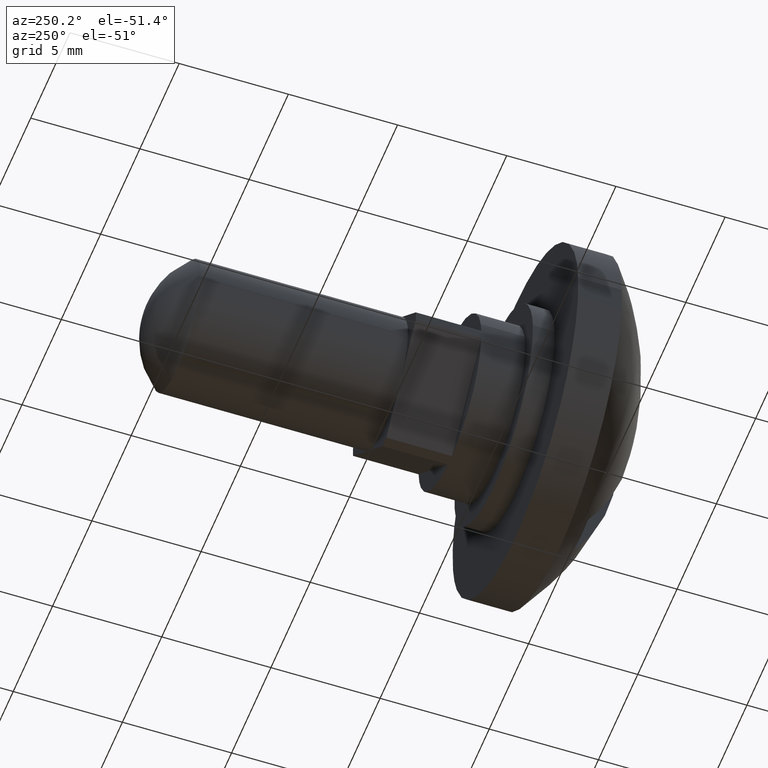
[diagram: clean part render]
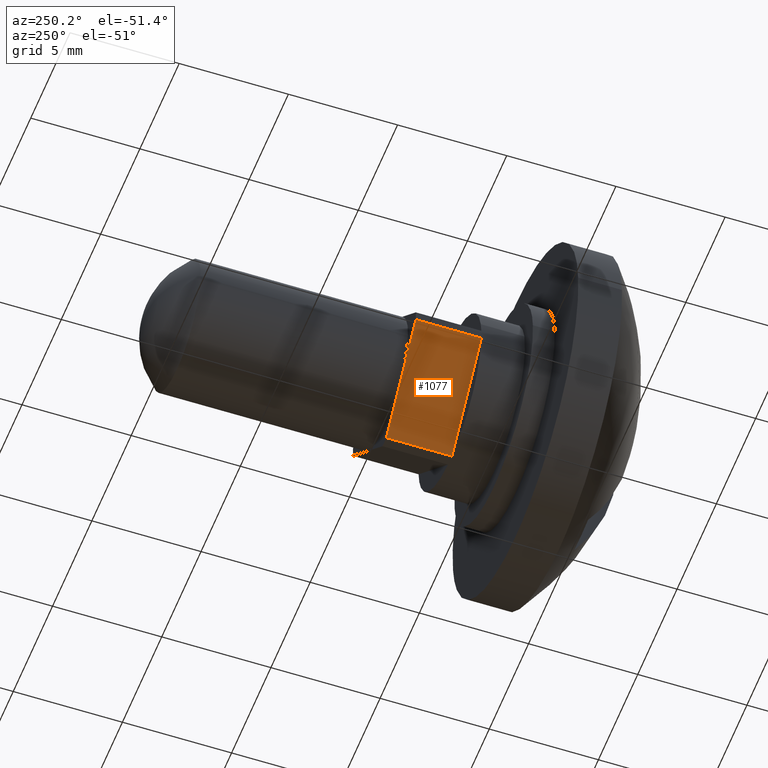
[diagram: same view with one face highlighted and labeled with its STEP entity id]
A machine part, auxiliary view. The second image highlights one B-rep face of the part: STEP entity #1077.
In plain terms, the highlighted face is a freeform B-spline surface patch.
Its self-contained STEP definition (entity closure, byte-faithful):
#120=CARTESIAN_POINT('',(-2.121323301251275,3.400000000000000,-2.121318198730010));
#121=VERTEX_POINT('',#120);
#704=CARTESIAN_POINT('',(-3.992149283786215,3.399999999999960,-0.250487716196264));
#705=VERTEX_POINT('',#704);
#719=CARTESIAN_POINT('',(-3.992149283786215,0.400000000000067,-0.250487716196264));
#720=VERTEX_POINT('',#719);
#721=CARTESIAN_POINT('',(-3.992149283786215,3.399999999999960,-0.250487716196264));
#722=CARTESIAN_POINT('',(-3.992149283786215,0.400000000000067,-0.250487716196264));
#723=QUASI_UNIFORM_CURVE('',1,(#721,#722),.UNSPECIFIED.,.F.,.U.);
#724=EDGE_CURVE('',#705,#720,#723,.T.);
#726=CARTESIAN_POINT('',(-0.250497318716338,0.400000000000067,-3.992148681263755));
#727=VERTEX_POINT('',#726);
#741=CARTESIAN_POINT('',(-0.250497318716338,3.399999999999960,-3.992148681263755));
#742=VERTEX_POINT('',#741);
#743=CARTESIAN_POINT('',(-0.250497318716338,3.399999999999960,-3.992148681263755));
#744=CARTESIAN_POINT('',(-0.250497318716338,0.400000000000067,-3.992148681263755));
#745=QUASI_UNIFORM_CURVE('',1,(#743,#744),.UNSPECIFIED.,.F.,.U.);
#746=EDGE_CURVE('',#742,#727,#745,.T.);
#1003=CARTESIAN_POINT('',(-2.121323301251275,3.400000000000000,-2.121318198730010));
#1004=CARTESIAN_POINT('',(-0.250497318716338,3.399999999999960,-3.992148681263755));
#1005=QUASI_UNIFORM_CURVE('',1,(#1003,#1004),.UNSPECIFIED.,.F.,.U.);
#1006=EDGE_CURVE('',#121,#742,#1005,.T.);
#1057=CARTESIAN_POINT('',(-0.063601810313145,0.250150005814653,-4.179044639216812));
#1058=CARTESIAN_POINT('',(-4.179044892548337,0.250150005814653,-0.063591657884042));
#1059=CARTESIAN_POINT('',(-0.063601810313145,3.549850074651685,-4.179044639216812));
#1060=CARTESIAN_POINT('',(-4.179044892548337,3.549850074651685,-0.063591657884042));
#1061=B_SPLINE_SURFACE_WITH_KNOTS('',1,1,((#1057,#1059),(#1058,#1060)),.UNSPECIFIED.,.F.,.F.,.U.,(2,2),(2,2),(0.0,5.820122421794775),(0.0,3.299700068837032),.UNSPECIFIED.);
#1062=CARTESIAN_POINT('',(-3.992149283786215,3.399999999999960,-0.250487716196264));
#1063=CARTESIAN_POINT('',(-2.121323301251275,3.400000000000000,-2.121318198730010));
#1064=QUASI_UNIFORM_CURVE('',1,(#1062,#1063),.UNSPECIFIED.,.F.,.U.);
#1065=EDGE_CURVE('',#705,#121,#1064,.T.);
#1066=ORIENTED_EDGE('',*,*,#1065,.T.);
#1067=ORIENTED_EDGE('',*,*,#1006,.T.);
#1068=ORIENTED_EDGE('',*,*,#746,.T.);
#1069=CARTESIAN_POINT('',(-3.992149283786215,0.400000000000067,-0.250487716196264));
#1070=CARTESIAN_POINT('',(-0.250497318716338,0.400000000000067,-3.992148681263755));
#1071=QUASI_UNIFORM_CURVE('',1,(#1069,#1070),.UNSPECIFIED.,.F.,.U.);
#1072=EDGE_CURVE('',#720,#727,#1071,.T.);
#1073=ORIENTED_EDGE('',*,*,#1072,.F.);
#1074=ORIENTED_EDGE('',*,*,#724,.F.);
#1075=EDGE_LOOP('',(#1066,#1067,#1068,#1073,#1074));
#1076=FACE_OUTER_BOUND('',#1075,.T.);
#1077=ADVANCED_FACE('',(#1076),#1061,.T.);